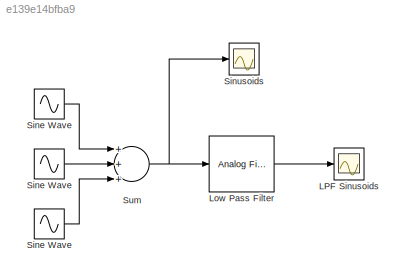
MODEL slx_e139e14bfba9
KIND model
BLOCK [Sin]  Sine Wave 
  Amplitude = 0.2
  Frequency = 5000*pi
  Ports = [0, 1]
  SampleTime = 1.25e-6
BLOCK [Scope] LPF Sinusoids
  DataFormat = StructureWithTime
  Floating = off
  NumInputPorts = 1
  Ports = [1]
  SampleTime = 0
  SaveName = ScopeData1
  ShowLegends = off
  YMax = 1.5
  YMin = -1.5
BLOCK [Reference] Low Pass Filter  REF=dsparch4/Analog
Filter Design
  N = 3
  Ports = [1, 1]
  Rp = 2
  Rs = 40
  SourceBlock = dsparch4/Analog\nFilter Design
  SourceType = Analog Filter Design
  Whi = 80
  Wlo = pi*2500
  filttype = Lowpass
  method = Butterworth
BLOCK [Sin] Sine Wave
  Frequency = 1000*pi
  Ports = [0, 1]
  SampleTime = 1.25e-6
BLOCK [Sin] Sine Wave 
  Amplitude = 0.5
  Frequency = 3000*pi
  Ports = [0, 1]
  SampleTime = 1.25e-6
BLOCK [Scope] Sinusoids
  DataFormat = StructureWithTime
  Floating = off
  NumInputPorts = 1
  Ports = [1]
  SampleTime = 0
  ShowLegends = off
BLOCK [Sum] Sum
  InputSameDT = off
  Inputs = +++
  OutDataTypeStr = Inherit: Inherit via internal rule
  Ports = [3, 1]
  SaturateOnIntegerOverflow = off
LINE  Sine Wave :1 -> Sum:3
LINE Low Pass Filter:1 -> LPF Sinusoids:1
LINE Sine Wave :1 -> Sum:2
LINE Sine Wave:1 -> Sum:1
NET Sum:1 -> Low Pass Filter:1, Sinusoids:1
note: NET lines group one-source signal fan-out (src -> all destinations, sorted); 1:1 wires keep LINE
